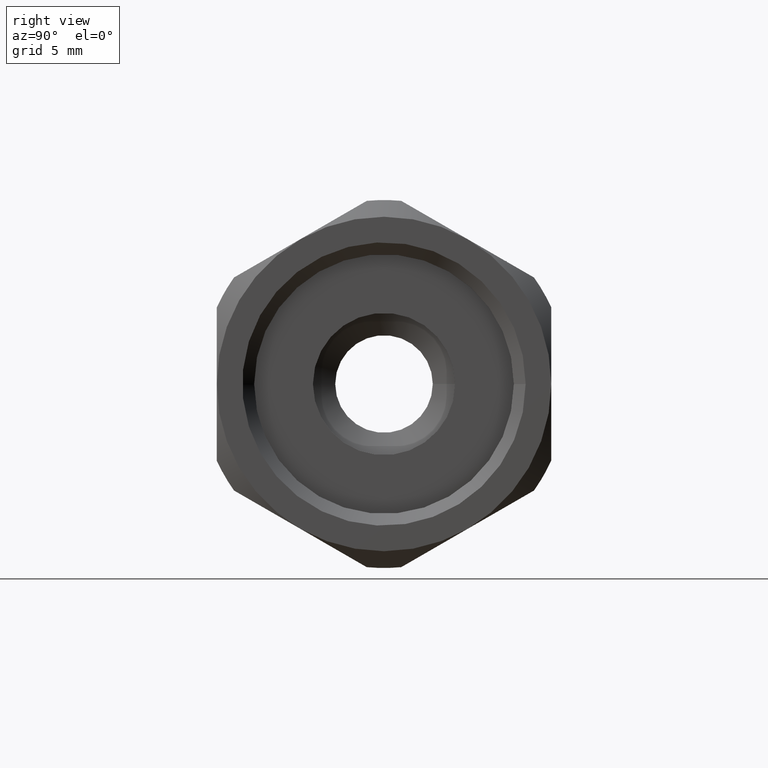
[diagram: clean part render]
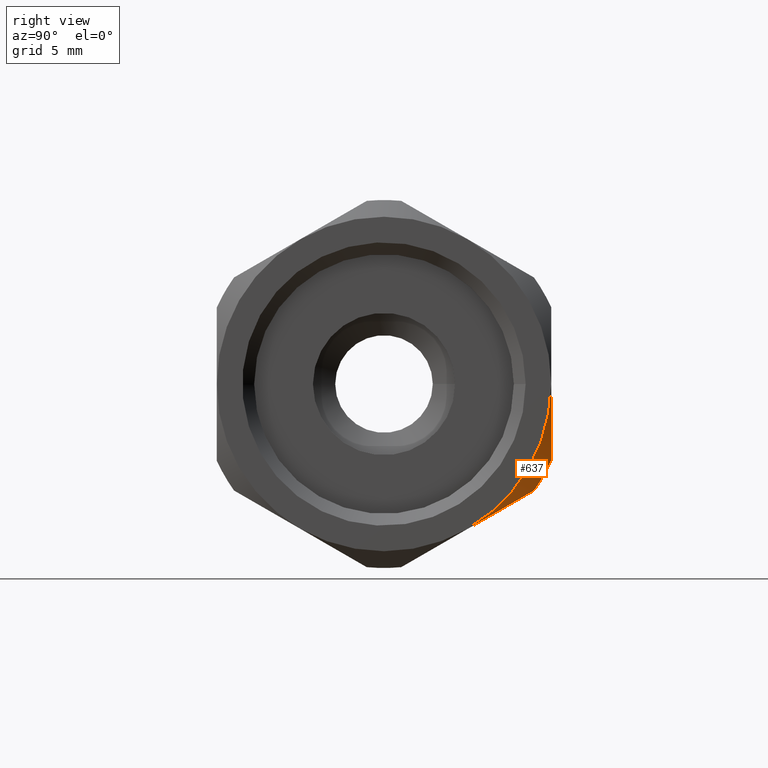
[diagram: same view with one face highlighted and labeled with its STEP entity id]
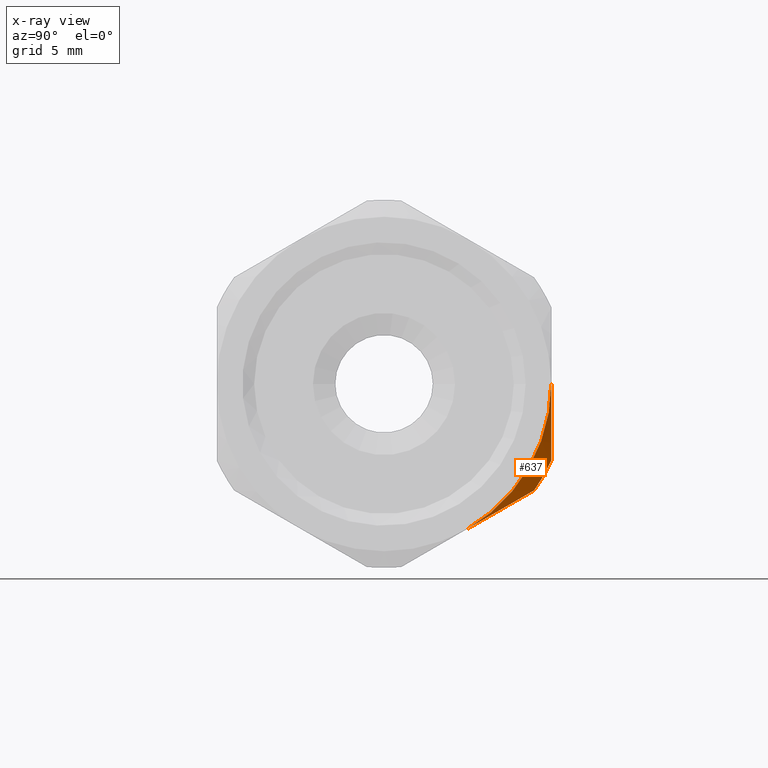
[diagram: x-ray of the same camera — body ghosted, the highlighted face saturated]
A machine part, right view. The second image highlights one B-rep face of the part: STEP entity #637.
The next image is the same camera in x-ray: the body ghosted, the highlighted face saturated — about 0% of this face is hidden behind the body in this view.
In plain terms, the highlighted conical surface has half-angle 45 deg.
Its self-contained STEP definition (entity closure, byte-faithful):
#90=CARTESIAN_POINT('',(37.299999999999990,10.762352359916250,-7.642759428439780));
#91=VERTEX_POINT('',#90);
#98=CARTESIAN_POINT('',(38.500000000000000,5.999999999999993,-10.392304845413275));
#99=VERTEX_POINT('',#98);
#100=CARTESIAN_POINT('',(38.499999999999986,5.999999999999996,-10.392304845413275));
#101=CARTESIAN_POINT('',(38.499999999999986,8.267786838055365,-9.082997503997317));
#102=CARTESIAN_POINT('',(37.299999999999990,10.762352359916257,-7.642759428439775));
#110=(BOUNDED_CURVE()B_SPLINE_CURVE(2,(#100,#101,#102),.UNSPECIFIED.,.F.,.U.)B_SPLINE_CURVE_WITH_KNOTS((3,3),(0.565685500897024,1.131371001794048),.UNSPECIFIED.)CURVE()GEOMETRIC_REPRESENTATION_ITEM()RATIONAL_B_SPLINE_CURVE((1.0,1.024695076595957,1.0))REPRESENTATION_ITEM(''));
#111=EDGE_CURVE('',#99,#91,#110,.T.);
#494=CARTESIAN_POINT('',(38.500000000000000,12.000000000000002,0.0));
#495=VERTEX_POINT('',#494);
#600=CARTESIAN_POINT('',(37.899999999999999,0.0,0.0));
#601=DIRECTION('',(-1.0,0.0,0.0));
#602=DIRECTION('',(0.0,1.0,0.0));
#603=AXIS2_PLACEMENT_3D('',#600,#601,#602);
#604=CONICAL_SURFACE('',#603,12.600000000000001,44.999999999999950);
#605=ORIENTED_EDGE('',*,*,#111,.T.);
#606=CARTESIAN_POINT('',(37.299999999999990,12.000000000000002,-5.499090833947006));
#607=VERTEX_POINT('',#606);
#608=CARTESIAN_POINT('',(37.299999999999997,0.0,0.0));
#609=DIRECTION('',(1.0,0.0,0.0));
#610=DIRECTION('',(0.0,1.0,0.0));
#611=AXIS2_PLACEMENT_3D('',#608,#609,#610);
#612=CIRCLE('',#611,13.200000000000001);
#613=EDGE_CURVE('',#91,#607,#612,.T.);
#614=ORIENTED_EDGE('',*,*,#613,.T.);
#615=CARTESIAN_POINT('',(37.299999999999997,12.000000000000002,-5.499090833947021));
#616=CARTESIAN_POINT('',(38.499999999999993,12.000000000000002,-2.618614682831941));
#617=CARTESIAN_POINT('',(38.499999999999993,12.000000000000002,0.0));
#625=(BOUNDED_CURVE()B_SPLINE_CURVE(2,(#615,#616,#617),.UNSPECIFIED.,.F.,.U.)B_SPLINE_CURVE_WITH_KNOTS((3,3),(0.0,0.565685500897025),.UNSPECIFIED.)CURVE()GEOMETRIC_REPRESENTATION_ITEM()RATIONAL_B_SPLINE_CURVE((1.0,1.024695076595943,1.0))REPRESENTATION_ITEM(''));
#626=EDGE_CURVE('',#607,#495,#625,.T.);
#627=ORIENTED_EDGE('',*,*,#626,.T.);
#628=CARTESIAN_POINT('',(38.500000000000000,0.0,0.0));
#629=DIRECTION('',(1.0,0.0,0.0));
#630=DIRECTION('',(0.0,1.0,0.0));
#631=AXIS2_PLACEMENT_3D('',#628,#629,#630);
#632=CIRCLE('',#631,12.000000000000002);
#633=EDGE_CURVE('',#99,#495,#632,.T.);
#634=ORIENTED_EDGE('',*,*,#633,.F.);
#635=EDGE_LOOP('',(#605,#614,#627,#634));
#636=FACE_OUTER_BOUND('',#635,.T.);
#637=ADVANCED_FACE('',(#636),#604,.T.);